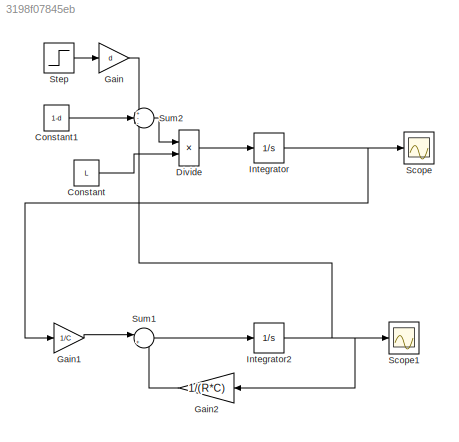
MODEL slx_3198f07845eb
KIND model
CONFIG AbsTol = auto
CONFIG EnableMultiTasking = off
CONFIG FixedStep = auto
CONFIG MaxStep = auto
CONFIG MinStep = auto
CONFIG RelTol = 1e-3
CONFIG SampleTimeConstraint = Unconstrained
CONFIG SolverName = ode23s
CONFIG StartTime = 0.0
CONFIG StopTime = 0.01
BLOCK [Constant] Constant
  Value = L
BLOCK [Constant] Constant1
  Value = 1-d
BLOCK [Product] Divide
  Inputs = */
BLOCK [Gain] Gain
  Gain = d
BLOCK [Gain] Gain1
  Gain = 1/C
BLOCK [Gain] Gain2
  Gain = 1/(R*C)
  NameLocation = top
BLOCK [Integrator] Integrator
BLOCK [Integrator] Integrator2
BLOCK [Scope] Scope
  Floating = off
  NumInputPorts = 1
  ScopeSpecificationString = Simulink.scopes.TimeScopeBlockCfg('CurrentConfiguration', extmgr.ConfigurationSet(extmgr.Configuration('Core','General UI',true),extmgr.Configuration('Core','Source UI',true),extmgr.Configuration('Sources','WiredSimulink',true),extmgr.Configuration('Visuals','Time Domain',true,'SerializedDisplays',{struct('MinYLimReal','-0.16269','MaxYLimReal','1.46417','YLabelReal','','MinYLimMag','0.00000','MaxY...<+1359ch>
BLOCK [Scope] Scope1
  Floating = off
  NumInputPorts = 1
  ScopeSpecificationString = Simulink.scopes.TimeScopeBlockCfg('CurrentConfiguration', extmgr.ConfigurationSet(extmgr.Configuration('Core','General UI',true),extmgr.Configuration('Core','Source UI',true),extmgr.Configuration('Sources','WiredSimulink',true,'DataLoggingVariableName','ScopeData1'),extmgr.Configuration('Visuals','Time Domain',true,'SerializedDisplays',{struct('MinYLimReal','-1.59158','MaxYLimReal','14.32419','YLa...<+1403ch>
BLOCK [Step] Step
  After = 32
  SampleTime = 0
  Time = 0
BLOCK [Sum] Sum1
  Inputs = |+-
BLOCK [Sum] Sum2
  Inputs = +--
LINE Constant1:1 -> Sum2:2
LINE Constant:1 -> Divide:2
LINE Divide:1 -> Integrator:1
LINE Gain1:1 -> Sum1:1
LINE Gain2:1 -> Sum1:2
LINE Gain:1 -> Sum2:1
NET Integrator2:1 -> Gain2:1, Scope1:1, Sum2:3
NET Integrator:1 -> Gain1:1, Scope:1
LINE Step:1 -> Gain:1
LINE Sum1:1 -> Integrator2:1
LINE Sum2:1 -> Divide:1
note: NET lines group one-source signal fan-out (src -> all destinations, sorted); 1:1 wires keep LINE
